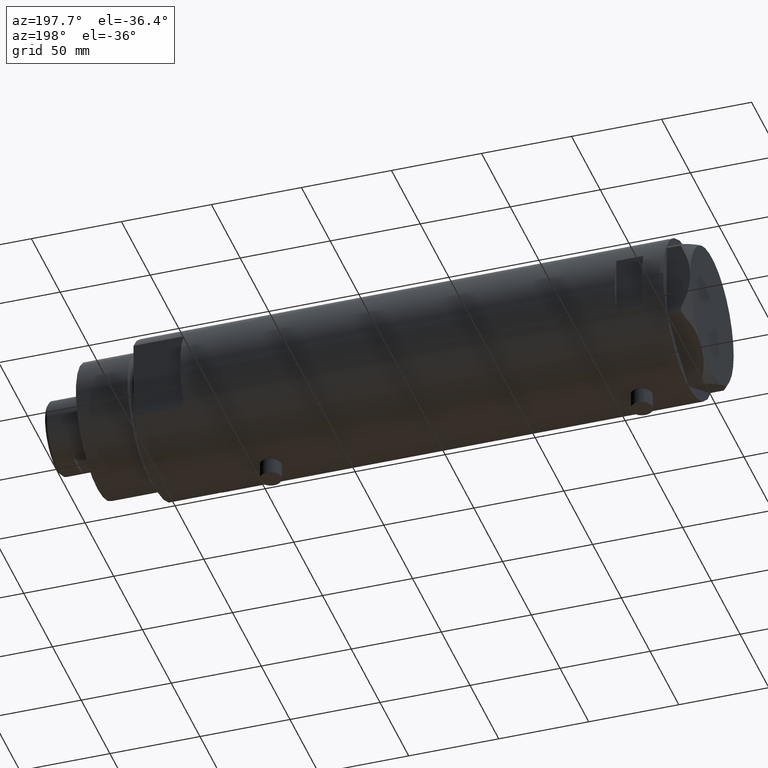
[diagram: clean part render]
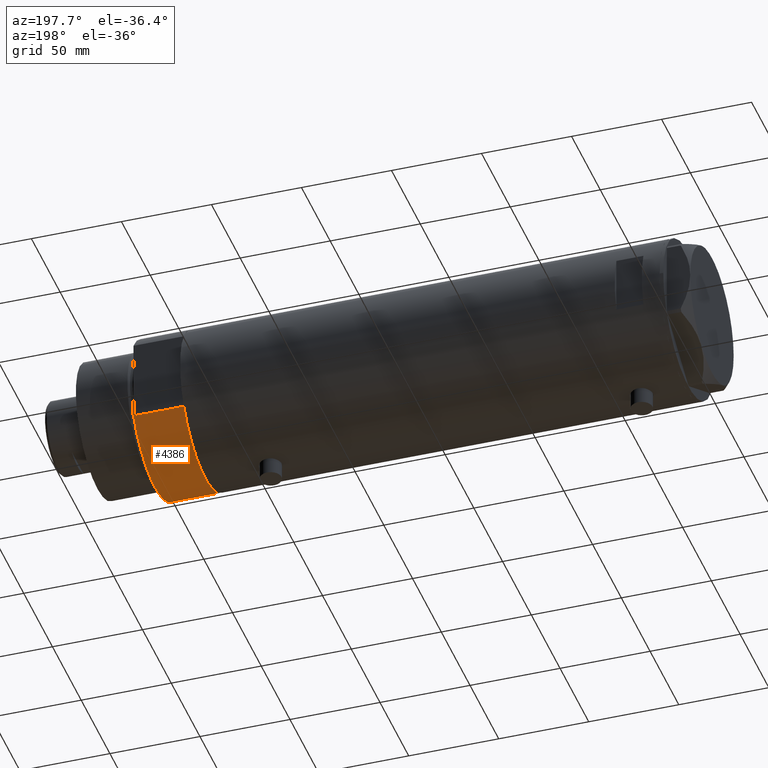
[diagram: same view with one face highlighted and labeled with its STEP entity id]
A machine part, auxiliary view. The second image highlights one B-rep face of the part: STEP entity #4386.
In plain terms, the highlighted cylindrical surface (partial cylindrical patch) has radius 44 mm, axis along (-1, -0, 0).
Its self-contained STEP definition (entity closure, byte-faithful):
#13 = DIRECTION ( 'NONE',  ( -1.000000000000000000, 0.000000000000000000, 0.000000000000000000 ) ) ;
#18 = DIRECTION ( 'NONE',  ( 1.000000000000000000, 0.000000000000000000, 0.000000000000000000 ) ) ;
#73 = EDGE_CURVE ( 'NONE', #3432, #950, #160, .T. ) ;
#126 = CARTESIAN_POINT ( 'NONE',  ( 23.01629857296780557, -37.50000000000000000, 0.000000000000000000 ) ) ;
#160 = CIRCLE ( 'NONE', #3159, 44.00000000000000000 ) ;
#350 = CARTESIAN_POINT ( 'NONE',  ( 0.000000000000000000, 0.000000000000000000, 27.89999999999999858 ) ) ;
#367 = CYLINDRICAL_SURFACE ( 'NONE', #748, 44.00000000000000000 ) ;
#456 = ORIENTED_EDGE ( 'NONE', *, *, #479, .T. ) ;
#479 = EDGE_CURVE ( 'NONE', #950, #1229, #3136, .T. ) ;
#508 = EDGE_CURVE ( 'NONE', #3432, #1417, #2424, .T. ) ;
#714 = CARTESIAN_POINT ( 'NONE',  ( 23.01629857296780557, 37.50000000000000000, 0.000000000000000000 ) ) ;
#734 = DIRECTION ( 'NONE',  ( 0.000000000000000000, 0.000000000000000000, 1.000000000000000000 ) ) ;
#748 = AXIS2_PLACEMENT_3D ( 'NONE', #1377, #1405, #13 ) ;
#811 = CARTESIAN_POINT ( 'NONE',  ( 23.01629857296780557, 37.50000000000000000, 0.000000000000000000 ) ) ;
#950 = VERTEX_POINT ( 'NONE', #811 ) ;
#988 = FACE_OUTER_BOUND ( 'NONE', #1551, .T. ) ;
#1091 = CARTESIAN_POINT ( 'NONE',  ( 23.01629857296780557, -37.50000000000000000, 0.000000000000000000 ) ) ;
#1229 = VERTEX_POINT ( 'NONE', #1848 ) ;
#1377 = CARTESIAN_POINT ( 'NONE',  ( 0.000000000000000000, 0.000000000000000000, 27.89999999999999858 ) ) ;
#1405 = DIRECTION ( 'NONE',  ( -0.000000000000000000, -0.000000000000000000, -1.000000000000000000 ) ) ;
#1417 = VERTEX_POINT ( 'NONE', #2317 ) ;
#1551 = EDGE_LOOP ( 'NONE', ( #3021, #4512, #2935, #456 ) ) ;
#1760 = CARTESIAN_POINT ( 'NONE',  ( 0.000000000000000000, 0.000000000000000000, 0.000000000000000000 ) ) ;
#1848 = CARTESIAN_POINT ( 'NONE',  ( 23.01629857296780557, 37.50000000000000000, 27.89999999999999858 ) ) ;
#1944 = EDGE_CURVE ( 'NONE', #1417, #1229, #2579, .T. ) ;
#2317 = CARTESIAN_POINT ( 'NONE',  ( 23.01629857296780557, -37.50000000000000000, 27.89999999999999858 ) ) ;
#2424 = LINE ( 'NONE', #1091, #2793 ) ;
#2493 = DIRECTION ( 'NONE',  ( -0.000000000000000000, -0.000000000000000000, 1.000000000000000000 ) ) ;
#2579 = CIRCLE ( 'NONE', #2869, 44.00000000000000000 ) ;
#2793 = VECTOR ( 'NONE', #2493, 1000.000000000000000 ) ;
#2869 = AXIS2_PLACEMENT_3D ( 'NONE', #350, #3495, #3135 ) ;
#2935 = ORIENTED_EDGE ( 'NONE', *, *, #73, .T. ) ;
#2947 = VECTOR ( 'NONE', #3240, 1000.000000000000000 ) ;
#3021 = ORIENTED_EDGE ( 'NONE', *, *, #1944, .F. ) ;
#3135 = DIRECTION ( 'NONE',  ( 1.000000000000000000, 0.000000000000000000, 0.000000000000000000 ) ) ;
#3136 = LINE ( 'NONE', #714, #2947 ) ;
#3159 = AXIS2_PLACEMENT_3D ( 'NONE', #1760, #734, #18 ) ;
#3240 = DIRECTION ( 'NONE',  ( -0.000000000000000000, -0.000000000000000000, 1.000000000000000000 ) ) ;
#3432 = VERTEX_POINT ( 'NONE', #126 ) ;
#3495 = DIRECTION ( 'NONE',  ( 0.000000000000000000, 0.000000000000000000, 1.000000000000000000 ) ) ;
#4386 = ADVANCED_FACE ( 'NONE', ( #988 ), #367, .T. ) ;
#4512 = ORIENTED_EDGE ( 'NONE', *, *, #508, .F. ) ;